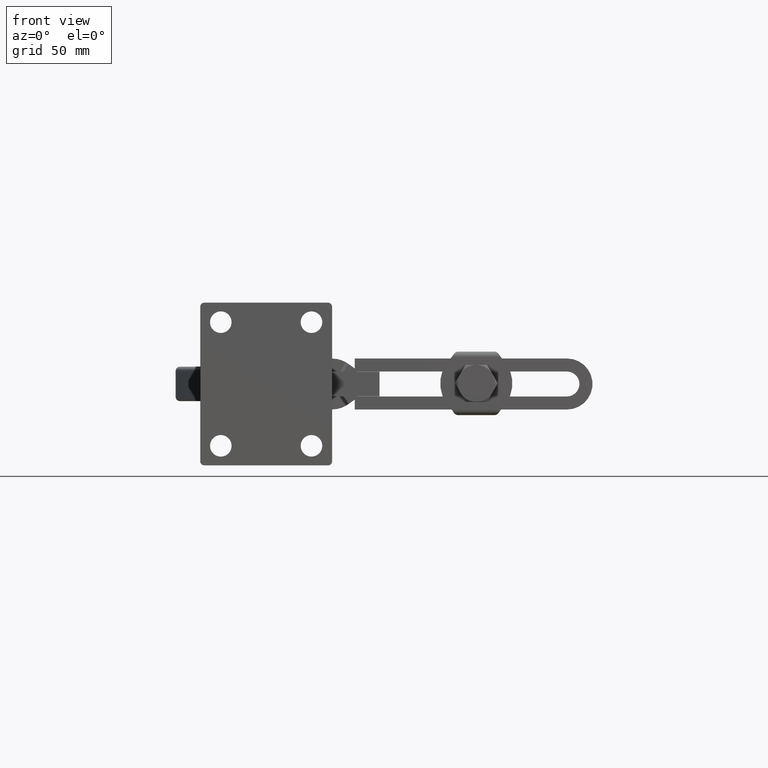
[diagram: clean part render]
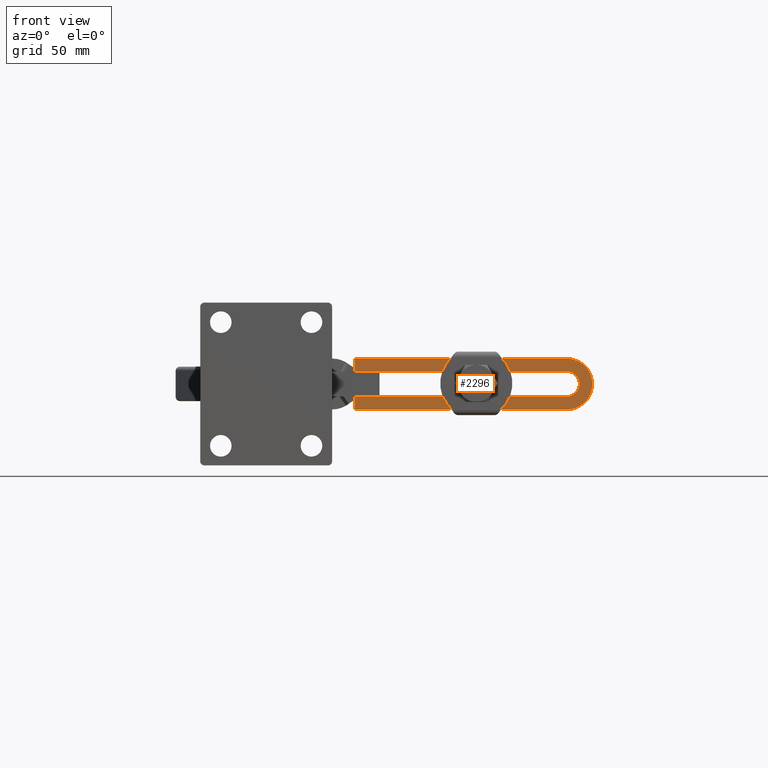
[diagram: same view with one face highlighted and labeled with its STEP entity id]
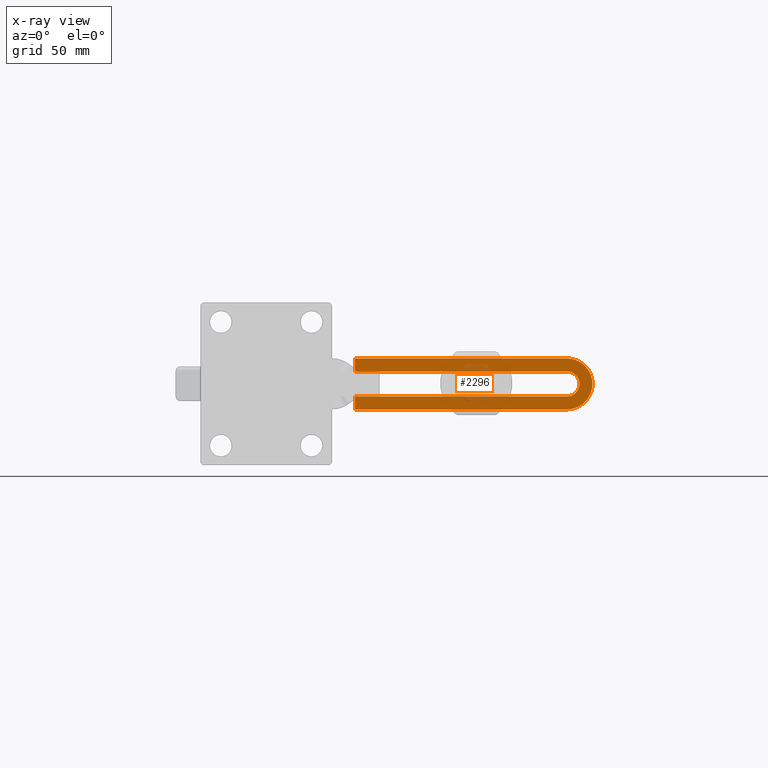
[diagram: x-ray of the same camera — body ghosted, the highlighted face saturated]
A machine part, front view. The second image highlights one B-rep face of the part: STEP entity #2296.
The next image is the same camera in x-ray: the body ghosted, the highlighted face saturated — about 5% of this face is hidden behind the body in this view.
In plain terms, the highlighted planar face has unit normal (-0, 1, 0).
Its self-contained STEP definition (entity closure, byte-faithful):
#2029=CARTESIAN_POINT('',(223.454017975730040,196.666062724779180,27.225000000000215));
#2030=VERTEX_POINT('',#2029);
#2037=CARTESIAN_POINT('',(223.454017975730040,196.666062724779180,2.425000000000215));
#2038=VERTEX_POINT('',#2037);
#2039=CARTESIAN_POINT('',(223.454017975730040,196.666062724779180,14.825000000000212));
#2040=DIRECTION('',(-0.004462668907414,-0.999990042243533,0.0));
#2041=DIRECTION('',(0.0,0.0,-1.0));
#2042=AXIS2_PLACEMENT_3D('',#2039,#2040,#2041);
#2043=CIRCLE('',#2042,12.400000000000000);
#2044=EDGE_CURVE('',#2038,#2030,#2043,.T.);
#2068=CARTESIAN_POINT('',(120.455043624646120,197.125717622242800,27.225000000000158));
#2069=VERTEX_POINT('',#2068);
#2076=CARTESIAN_POINT('',(223.454017975730040,196.666062724779180,27.225000000000215));
#2077=DIRECTION('',(-0.999990042243533,0.004462668907414,-5.518779E-016));
#2078=VECTOR('',#2077,103.000000000000030);
#2079=LINE('',#2076,#2078);
#2080=EDGE_CURVE('',#2030,#2069,#2079,.T.);
#2099=CARTESIAN_POINT('',(120.455043624646120,197.125717622242800,20.875000000000156));
#2100=VERTEX_POINT('',#2099);
#2107=CARTESIAN_POINT('',(120.455043624646120,197.125717622242800,27.225000000000158));
#2108=DIRECTION('',(0.0,0.0,-1.0));
#2109=VECTOR('',#2108,6.350000000000001);
#2110=LINE('',#2107,#2109);
#2111=EDGE_CURVE('',#2069,#2100,#2110,.T.);
#2130=CARTESIAN_POINT('',(223.454017975730040,196.666062724779180,20.875000000000217));
#2131=VERTEX_POINT('',#2130);
#2138=CARTESIAN_POINT('',(120.455043624646120,197.125717622242800,20.875000000000156));
#2139=DIRECTION('',(0.999990042243533,-0.004462668907414,5.863702E-016));
#2140=VECTOR('',#2139,103.000000000000030);
#2141=LINE('',#2138,#2140);
#2142=EDGE_CURVE('',#2100,#2131,#2141,.T.);
#2162=CARTESIAN_POINT('',(223.454017975730040,196.666062724779180,8.775000000000212));
#2163=VERTEX_POINT('',#2162);
#2170=CARTESIAN_POINT('',(223.454017975730040,196.666062724779180,14.825000000000212));
#2171=DIRECTION('',(0.004462668907414,0.999990042243533,0.0));
#2172=DIRECTION('',(0.0,0.0,1.0));
#2173=AXIS2_PLACEMENT_3D('',#2170,#2171,#2172);
#2174=CIRCLE('',#2173,6.050000000000000);
#2175=EDGE_CURVE('',#2131,#2163,#2174,.T.);
#2194=CARTESIAN_POINT('',(120.455043624646140,197.125717622242800,8.775000000000159));
#2195=VERTEX_POINT('',#2194);
#2202=CARTESIAN_POINT('',(223.454017975730040,196.666062724779180,8.775000000000212));
#2203=DIRECTION('',(-0.999990042243533,0.004462668907414,-5.173855E-016));
#2204=VECTOR('',#2203,103.000000000000010);
#2205=LINE('',#2202,#2204);
#2206=EDGE_CURVE('',#2163,#2195,#2205,.T.);
#2225=CARTESIAN_POINT('',(120.455043624646140,197.125717622242800,2.425000000000162));
#2226=VERTEX_POINT('',#2225);
#2233=CARTESIAN_POINT('',(120.455043624646140,197.125717622242800,8.775000000000159));
#2234=DIRECTION('',(0.0,0.0,-1.0));
#2235=VECTOR('',#2234,6.349999999999997);
#2236=LINE('',#2233,#2235);
#2237=EDGE_CURVE('',#2195,#2226,#2236,.T.);
#2255=CARTESIAN_POINT('',(120.455043624646140,197.125717622242800,2.425000000000162));
#2256=DIRECTION('',(0.999990042243533,-0.004462668907414,5.173855E-016));
#2257=VECTOR('',#2256,103.000000000000010);
#2258=LINE('',#2255,#2257);
#2259=EDGE_CURVE('',#2226,#2038,#2258,.T.);
#2281=CARTESIAN_POINT('',(177.495149933029520,196.871163978561580,14.825000000000186));
#2282=DIRECTION('',(0.004462668907414,0.999990042243533,2.453569E-018));
#2283=DIRECTION('',(0.0,0.0,1.0));
#2284=AXIS2_PLACEMENT_3D('',#2281,#2282,#2283);
#2285=PLANE('',#2284);
#2286=ORIENTED_EDGE('',*,*,#2259,.T.);
#2287=ORIENTED_EDGE('',*,*,#2044,.T.);
#2288=ORIENTED_EDGE('',*,*,#2080,.T.);
#2289=ORIENTED_EDGE('',*,*,#2111,.T.);
#2290=ORIENTED_EDGE('',*,*,#2142,.T.);
#2291=ORIENTED_EDGE('',*,*,#2175,.T.);
#2292=ORIENTED_EDGE('',*,*,#2206,.T.);
#2293=ORIENTED_EDGE('',*,*,#2237,.T.);
#2294=EDGE_LOOP('',(#2286,#2287,#2288,#2289,#2290,#2291,#2292,#2293));
#2295=FACE_OUTER_BOUND('',#2294,.T.);
#2296=ADVANCED_FACE('',(#2295),#2285,.F.);